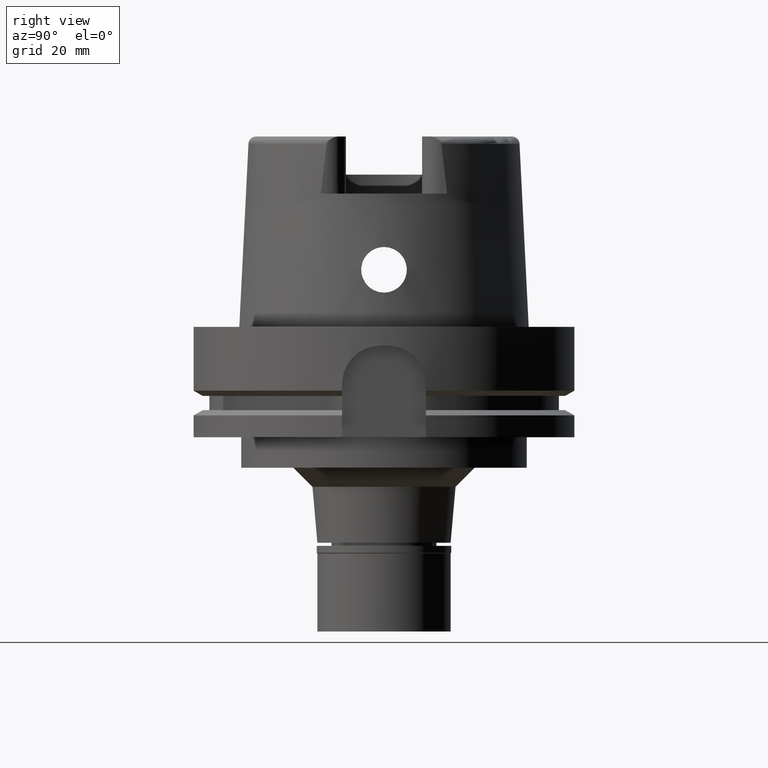
[diagram: clean part render]
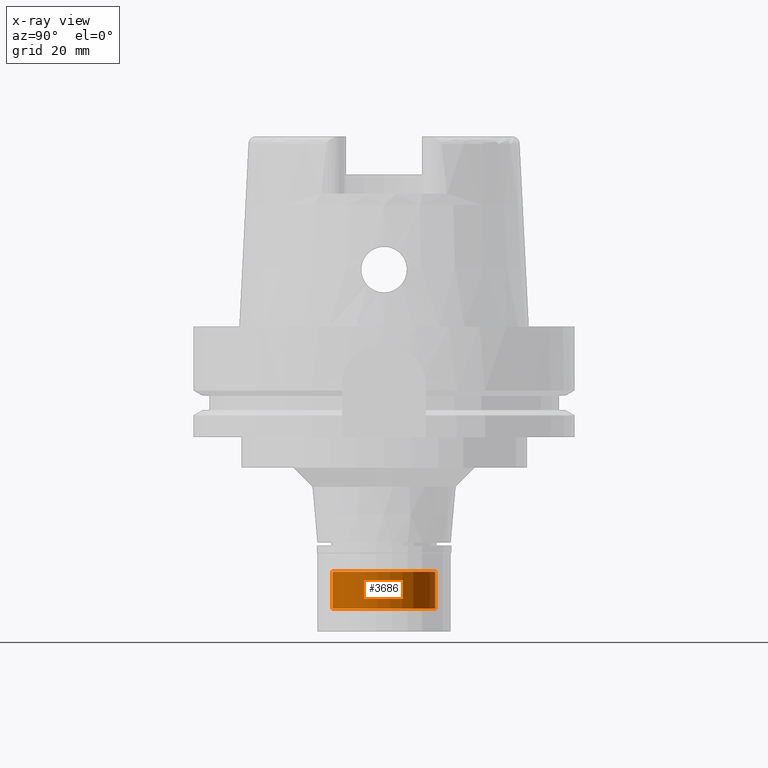
[diagram: x-ray — body ghosted, one internal face saturated and labeled with its STEP entity id]
A machine part, right view, then the same camera in x-ray: the body is ghosted and one INTERNAL B-rep face — a face not visible from any outside direction — is saturated and labeled: STEP entity #3686.
In plain terms, the highlighted cylindrical surface (partial cylindrical patch) has radius 13.5 mm, axis along (0, 0, -1).
Its self-contained STEP definition (entity closure, byte-faithful):
#100 = DIRECTION ( 'NONE',  ( 0.0000000000000000000, 0.0000000000000000000, 1.000000000000000000 ) ) ;
#106 = VERTEX_POINT ( 'NONE', #3776 ) ;
#468 = FACE_OUTER_BOUND ( 'NONE', #5402, .T. ) ;
#588 = AXIS2_PLACEMENT_3D ( 'NONE', #859, #3493, #2969 ) ;
#771 = CIRCLE ( 'NONE', #5105, 13.50000000000000000 ) ;
#859 = CARTESIAN_POINT ( 'NONE',  ( 0.0000000000000000000, 0.0000000000000000000, 0.0000000000000000000 ) ) ;
#870 = CARTESIAN_POINT ( 'NONE',  ( 0.0000000000000000000, 0.0000000000000000000, -16.50000000000000000 ) ) ;
#997 = EDGE_CURVE ( 'NONE', #4715, #1534, #4195, .T. ) ;
#1156 = DIRECTION ( 'NONE',  ( 0.0000000000000000000, 0.0000000000000000000, 1.000000000000000000 ) ) ;
#1312 = CARTESIAN_POINT ( 'NONE',  ( 0.0000000000000000000, 13.50000000000000000, -6.799999999999999822 ) ) ;
#1534 = VERTEX_POINT ( 'NONE', #1312 ) ;
#1583 = VECTOR ( 'NONE', #1156, 1000.000000000000000 ) ;
#1836 = CARTESIAN_POINT ( 'NONE',  ( 0.0000000000000000000, 0.0000000000000000000, -6.799999999999999822 ) ) ;
#1892 = DIRECTION ( 'NONE',  ( 0.0000000000000000000, -1.000000000000000000, 0.0000000000000000000 ) ) ;
#2048 = LINE ( 'NONE', #3375, #2650 ) ;
#2156 = CARTESIAN_POINT ( 'NONE',  ( 0.0000000000000000000, -13.50000000000000000, -6.799999999999999822 ) ) ;
#2650 = VECTOR ( 'NONE', #3775, 1000.000000000000000 ) ;
#2807 = CIRCLE ( 'NONE', #3099, 13.50000000000000000 ) ;
#2915 = CARTESIAN_POINT ( 'NONE',  ( 0.0000000000000000000, 13.50000000000000000, -16.50000000000000000 ) ) ;
#2969 = DIRECTION ( 'NONE',  ( 0.0000000000000000000, -1.000000000000000000, 0.0000000000000000000 ) ) ;
#3093 = CARTESIAN_POINT ( 'NONE',  ( 0.0000000000000000000, 13.50000000000000000, -16.50000000000000000 ) ) ;
#3099 = AXIS2_PLACEMENT_3D ( 'NONE', #1836, #100, #1892 ) ;
#3308 = EDGE_CURVE ( 'NONE', #4257, #1534, #2807, .T. ) ;
#3375 = CARTESIAN_POINT ( 'NONE',  ( 0.0000000000000000000, -13.50000000000000000, -16.50000000000000000 ) ) ;
#3493 = DIRECTION ( 'NONE',  ( 0.0000000000000000000, 0.0000000000000000000, -1.000000000000000000 ) ) ;
#3530 = DIRECTION ( 'NONE',  ( 0.0000000000000000000, 0.0000000000000000000, -1.000000000000000000 ) ) ;
#3686 = ADVANCED_FACE ( 'NONE', ( #468 ), #5100, .F. ) ;
#3775 = DIRECTION ( 'NONE',  ( 0.0000000000000000000, 0.0000000000000000000, 1.000000000000000000 ) ) ;
#3776 = CARTESIAN_POINT ( 'NONE',  ( 0.0000000000000000000, -13.50000000000000000, -16.50000000000000000 ) ) ;
#4059 = ORIENTED_EDGE ( 'NONE', *, *, #3308, .T. ) ;
#4195 = LINE ( 'NONE', #2915, #1583 ) ;
#4257 = VERTEX_POINT ( 'NONE', #2156 ) ;
#4285 = ORIENTED_EDGE ( 'NONE', *, *, #4753, .T. ) ;
#4312 = DIRECTION ( 'NONE',  ( 0.0000000000000000000, 1.000000000000000000, 0.0000000000000000000 ) ) ;
#4715 = VERTEX_POINT ( 'NONE', #3093 ) ;
#4753 = EDGE_CURVE ( 'NONE', #4715, #106, #771, .T. ) ;
#4807 = EDGE_CURVE ( 'NONE', #106, #4257, #2048, .T. ) ;
#5100 = CYLINDRICAL_SURFACE ( 'NONE', #588, 13.50000000000000000 ) ;
#5105 = AXIS2_PLACEMENT_3D ( 'NONE', #870, #3530, #4312 ) ;
#5322 = ORIENTED_EDGE ( 'NONE', *, *, #997, .F. ) ;
#5345 = ORIENTED_EDGE ( 'NONE', *, *, #4807, .T. ) ;
#5402 = EDGE_LOOP ( 'NONE', ( #4285, #5345, #4059, #5322 ) ) ;